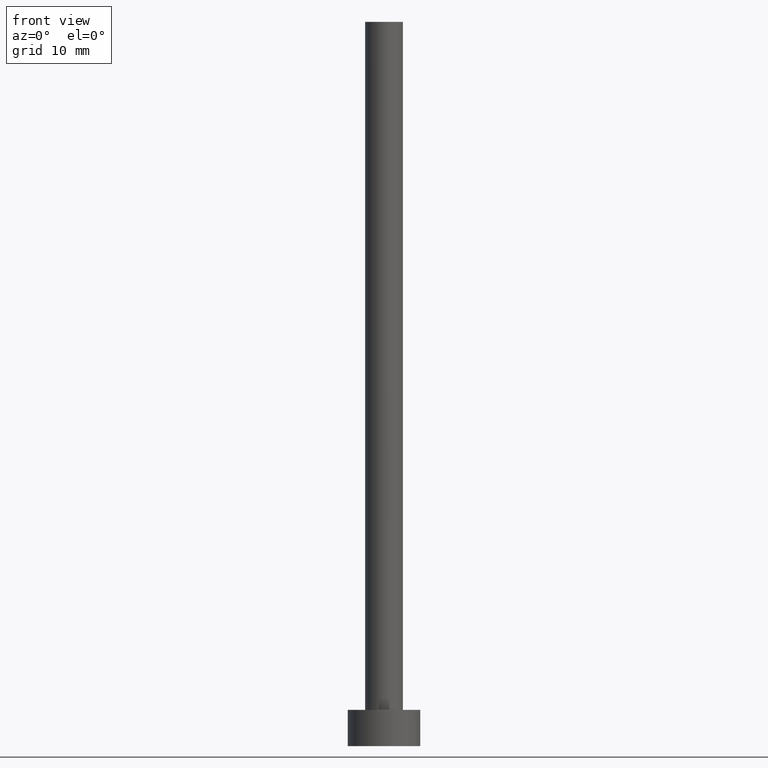
[diagram: clean part render]
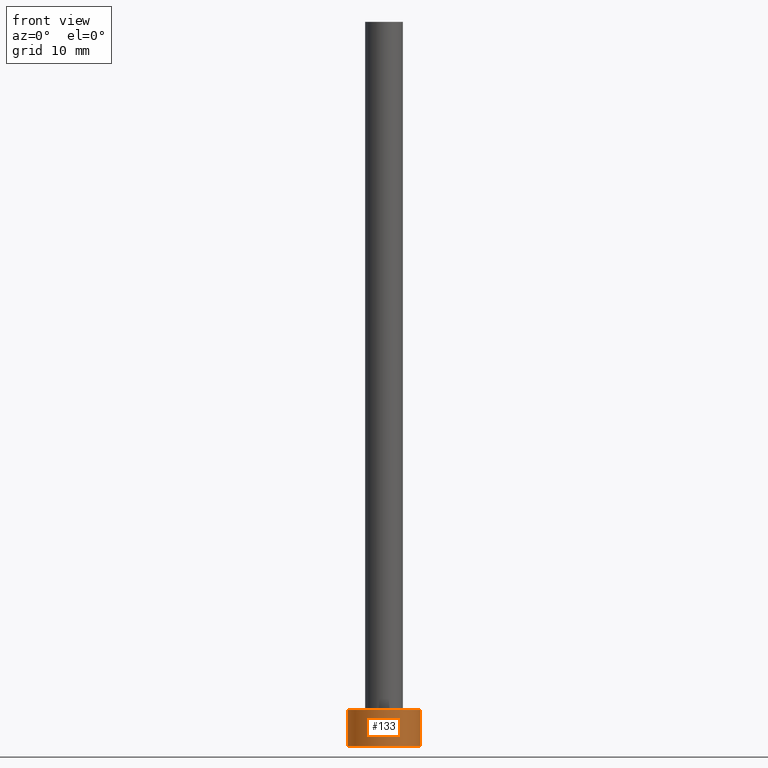
[diagram: same view with one face highlighted and labeled with its STEP entity id]
A machine part, front view. The second image highlights one B-rep face of the part: STEP entity #133.
In plain terms, the highlighted cylindrical surface (edge-blend (fillet) strip) has radius 5 mm, axis along (-0, -0, -1).
Its self-contained STEP definition (entity closure, byte-faithful):
#11 = CARTESIAN_POINT ( 'NONE',  ( 5.000000000000000000, 6.123233995736766282E-16, 5.000000000000000000 ) ) ;
#13 = DIRECTION ( 'NONE',  ( 1.000000000000000000, 0.000000000000000000, 0.000000000000000000 ) ) ;
#19 = ORIENTED_EDGE ( 'NONE', *, *, #21, .F. ) ;
#21 = EDGE_CURVE ( 'NONE', #191, #144, #40, .T. ) ;
#32 = DIRECTION ( 'NONE',  ( 0.000000000000000000, 0.000000000000000000, 1.000000000000000000 ) ) ;
#35 = VECTOR ( 'NONE', #203, 1000.000000000000000 ) ;
#40 = LINE ( 'NONE', #225, #35 ) ;
#46 = VERTEX_POINT ( 'NONE', #130 ) ;
#48 = EDGE_CURVE ( 'NONE', #46, #144, #93, .T. ) ;
#53 = CIRCLE ( 'NONE', #180, 5.000000000000000000 ) ;
#55 = CARTESIAN_POINT ( 'NONE',  ( 0.000000000000000000, 0.000000000000000000, 0.000000000000000000 ) ) ;
#60 = ORIENTED_EDGE ( 'NONE', *, *, #48, .T. ) ;
#69 = CYLINDRICAL_SURFACE ( 'NONE', #176, 5.000000000000000000 ) ;
#85 = CARTESIAN_POINT ( 'NONE',  ( 0.000000000000000000, 0.000000000000000000, 5.000000000000000000 ) ) ;
#93 = CIRCLE ( 'NONE', #190, 5.000000000000000000 ) ;
#103 = ORIENTED_EDGE ( 'NONE', *, *, #160, .F. ) ;
#110 = DIRECTION ( 'NONE',  ( 0.000000000000000000, 0.000000000000000000, 1.000000000000000000 ) ) ;
#112 = CARTESIAN_POINT ( 'NONE',  ( -5.000000000000000000, 0.000000000000000000, 5.000000000000000000 ) ) ;
#130 = CARTESIAN_POINT ( 'NONE',  ( -5.000000000000000000, 0.000000000000000000, 0.000000000000000000 ) ) ;
#133 = ADVANCED_FACE ( 'NONE', ( #214 ), #69, .T. ) ;
#139 = EDGE_LOOP ( 'NONE', ( #19, #103, #223, #60 ) ) ;
#144 = VERTEX_POINT ( 'NONE', #229 ) ;
#146 = CARTESIAN_POINT ( 'NONE',  ( -5.000000000000000000, 0.000000000000000000, 5.000000000000000000 ) ) ;
#154 = DIRECTION ( 'NONE',  ( -1.000000000000000000, 0.000000000000000000, 0.000000000000000000 ) ) ;
#160 = EDGE_CURVE ( 'NONE', #170, #191, #53, .T. ) ;
#161 = VECTOR ( 'NONE', #242, 1000.000000000000000 ) ;
#166 = EDGE_CURVE ( 'NONE', #170, #46, #195, .T. ) ;
#170 = VERTEX_POINT ( 'NONE', #146 ) ;
#172 = DIRECTION ( 'NONE',  ( 1.000000000000000000, 0.000000000000000000, 0.000000000000000000 ) ) ;
#176 = AXIS2_PLACEMENT_3D ( 'NONE', #85, #177, #154 ) ;
#177 = DIRECTION ( 'NONE',  ( -0.000000000000000000, -0.000000000000000000, -1.000000000000000000 ) ) ;
#180 = AXIS2_PLACEMENT_3D ( 'NONE', #243, #110, #172 ) ;
#190 = AXIS2_PLACEMENT_3D ( 'NONE', #55, #32, #13 ) ;
#191 = VERTEX_POINT ( 'NONE', #11 ) ;
#195 = LINE ( 'NONE', #112, #161 ) ;
#203 = DIRECTION ( 'NONE',  ( -0.000000000000000000, -0.000000000000000000, -1.000000000000000000 ) ) ;
#214 = FACE_OUTER_BOUND ( 'NONE', #139, .T. ) ;
#223 = ORIENTED_EDGE ( 'NONE', *, *, #166, .T. ) ;
#225 = CARTESIAN_POINT ( 'NONE',  ( 5.000000000000000000, 6.123233995736766282E-16, 5.000000000000000000 ) ) ;
#229 = CARTESIAN_POINT ( 'NONE',  ( 5.000000000000000000, 6.123233995736766282E-16, 0.000000000000000000 ) ) ;
#242 = DIRECTION ( 'NONE',  ( -0.000000000000000000, -0.000000000000000000, -1.000000000000000000 ) ) ;
#243 = CARTESIAN_POINT ( 'NONE',  ( 0.000000000000000000, 0.000000000000000000, 5.000000000000000000 ) ) ;